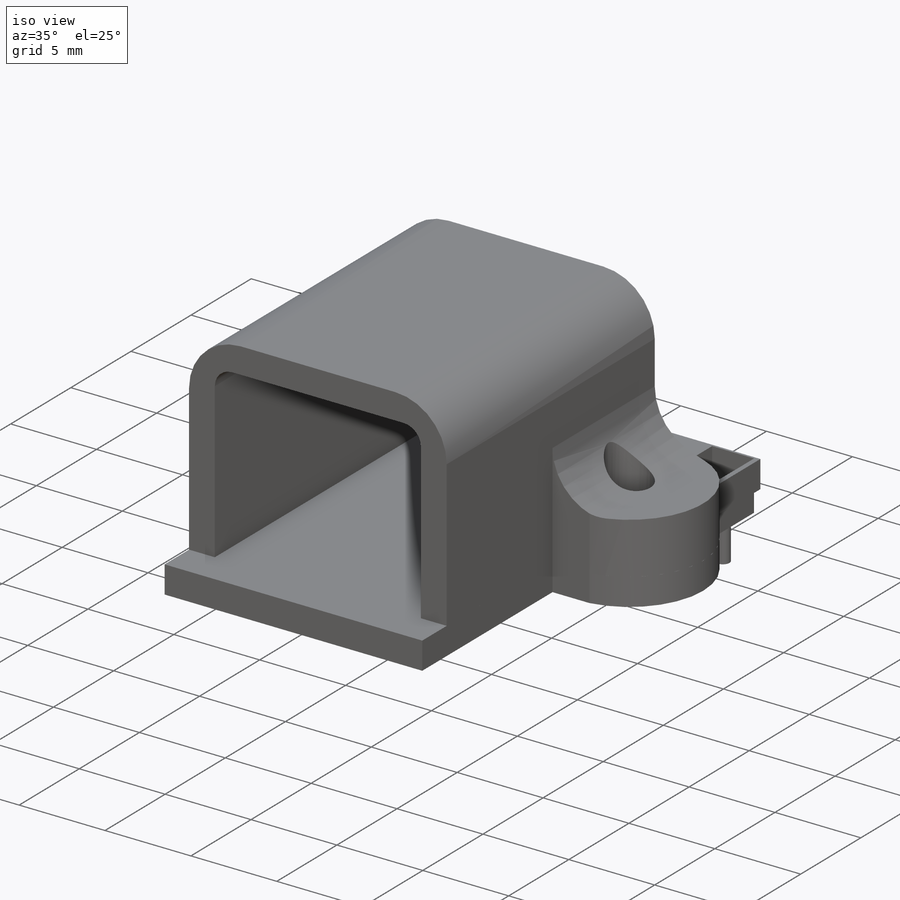
[diagram: iso view]
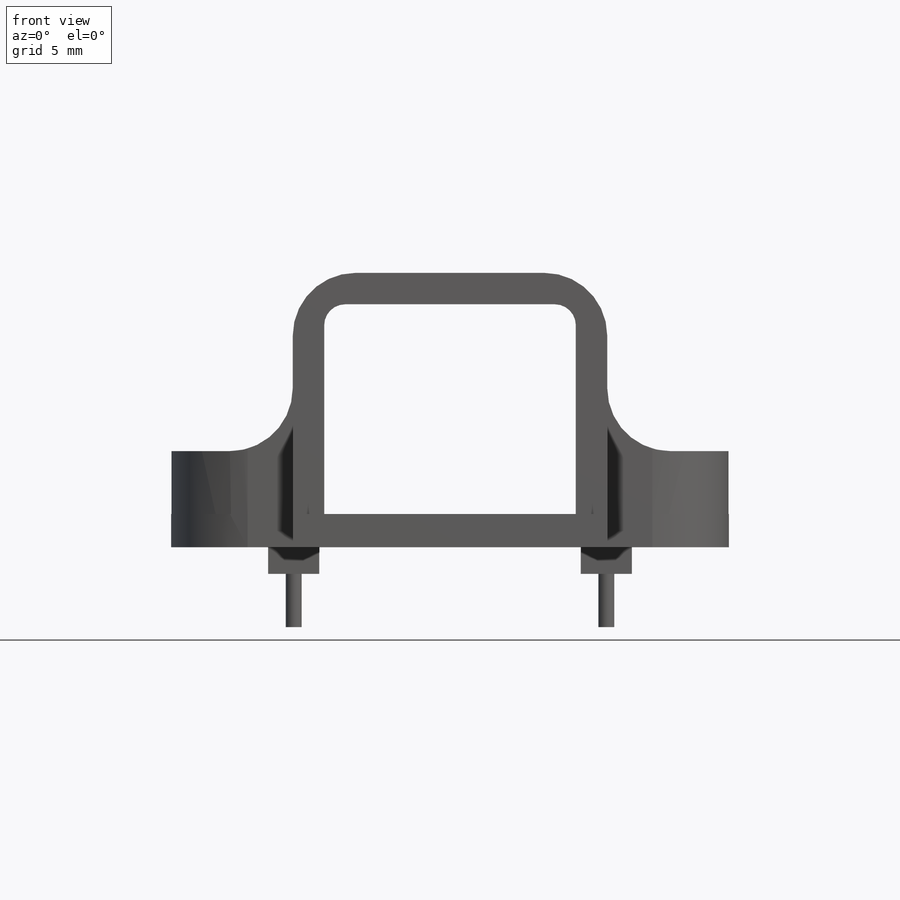
[diagram: front view]
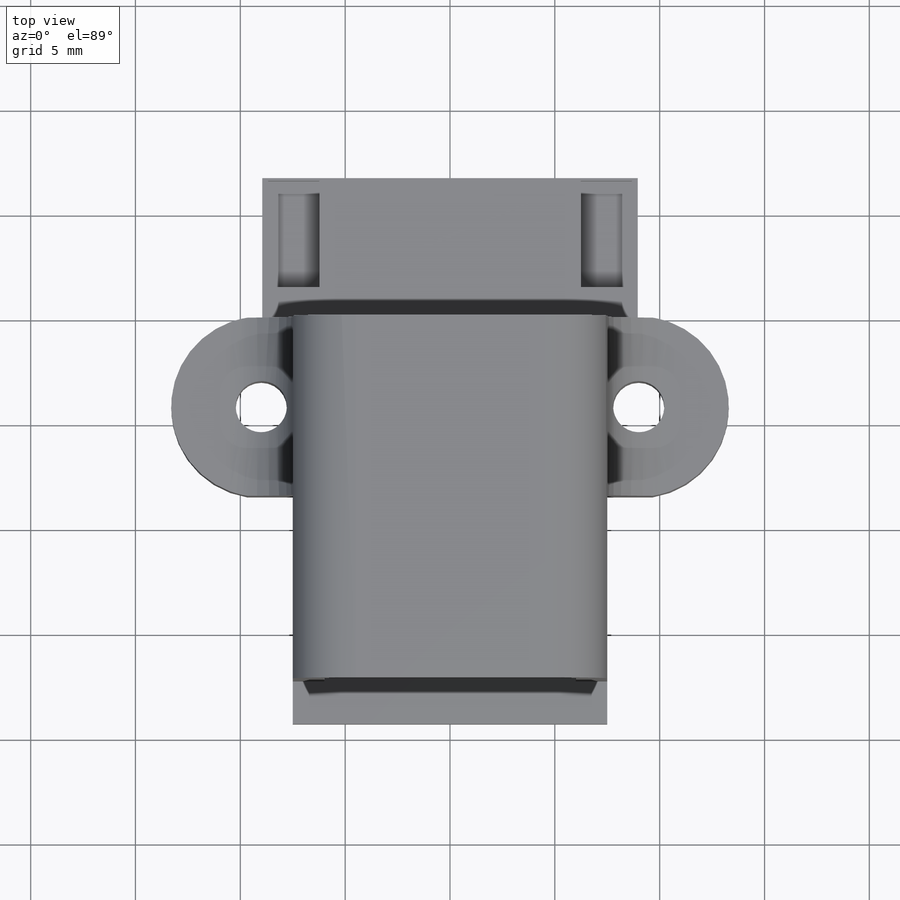
[diagram: top view]
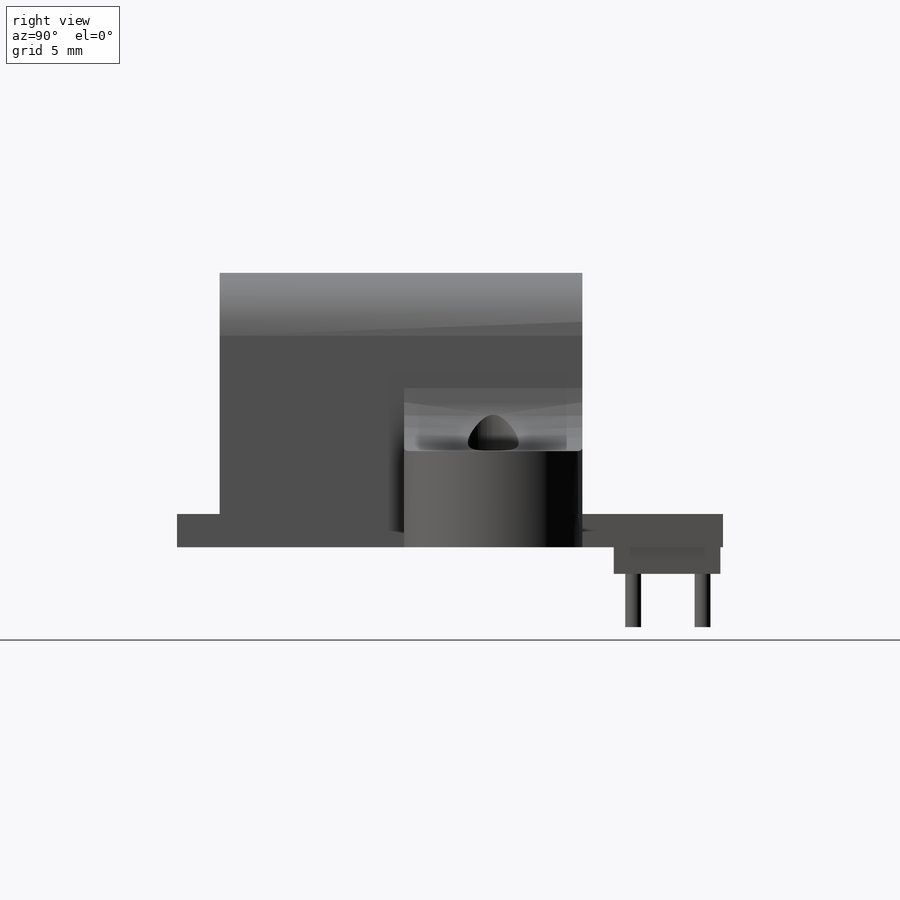
[diagram: right view]
SOLIDWORKS PART (.sldprt)
format: sldprt  version: not decoded by parser v0  size: 470,016 bytes
history: native  units: mm
features: sketch x11, extrude x6, cut_extrude x2, hole x2, fillet x2, material x1 (+16 scaffold rows collapsed)
feature tree (40):
  scaffold x16  (default folders/planes/origin — collapsed)
  material  "ABS"
  sketch  "Sketch1"  dims[c1.D5=3.0mm c1.D8=1.0mm c1.D1=26.6mm c1.D2=15.0mm c1.D3=11.5mm c1.D4=3.0mm c1.D6=9.2177mm c2.D6=~178.571478deg c3.D6=2.0mm c3.D7=1.5mm c4.D6=12.0mm c4.D9=1.5mm]
  extrude  "Extrude1"  Depth=17.3mm
  sketch  "Sketch2"  dims[D1=5.8mm]
  cut_extrude  "Extrude2"  Depth=8.8mm
  sketch  "Sketch3"  dims[c1.D1=2.0mm c1.D2=2.0mm c1.D3=2.0mm c2.D2=18.0mm c2.D3=9.0mm]
  cut_extrude  "Extrude3"  Depth=5mm
  hole  "#2 Clearance Hole1"  Diameter=2.4384mm Depth=11.5mm
  sketch  "3DSketch1"
  sketch  "Sketch4"  dims[hole-wizard template sketch: 60 standard entries collapsed; hole parameters kept: c18.Thru Hole Depth=11.5mm]
  sketch  "Sketch5"  dims[c1.D5=6.7056mm c1.D6=5.08mm c1.D7=2.4384mm c1.D8=14.9098mm c1.D9=2.032mm c2.D8=17.907mm c2.D10=14.9098mm c2.D11=2.667mm c2.D1=0.0mm c2.D2=0.0mm c2.D3=0.0mm c2.D4=0.0mm]
  extrude  "ENCODER"  [1 undecoded]
  extrude  "QUAD ENCODER"  Depth=1.5875mm
  sketch  "Sketch6"
  extrude  "Extrude5"  Depth=1.27mm
  sketch  "Sketch7"  dims[D1=0.762mm]
  extrude  "Extrude6"  Depth=2.54mm
  sketch  "Sketch8"  dims[c1.D1=16.51mm c1.D2=25.4mm c2.D1=1.3208mm c2.D2=3.048mm c2.D3=5.969mm c2.D4=5.461mm]
  extrude  "Extrude7"  Depth=6.35mm
  fillet  "Fillet1"  Radius=3.81mm
  fillet  "Fillet2"  Radius=2.54mm
  hole  "#2-56 Tapped Hole1"  Diameter=2.1844mm Depth=6.35mm
  sketch  "Sketch10"
  sketch  "Sketch11"  dims[hole-wizard template sketch: 59 standard entries collapsed; hole parameters kept: c18.Thread Major Dia.=2.1844mm c18.Thru Tap Drill Depth=6.35mm]
decode coverage: 19 of 23 modeling features carry decoded parameters
note: ~ marks probable driven/reference dimensions
note: 1 parameter value undecoded
note: suppression state not decoded; provenance and decode notes live in map.json
